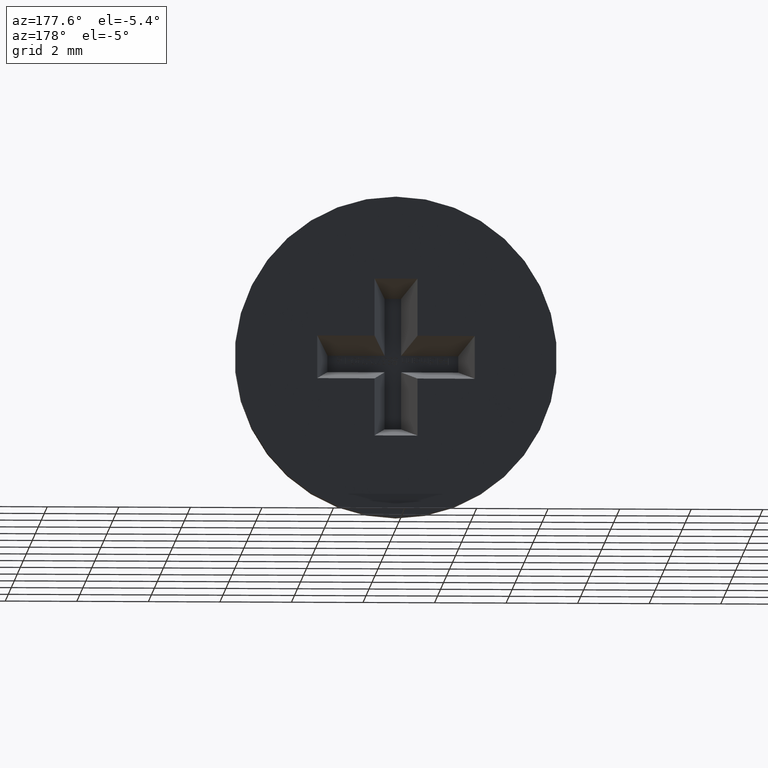
[diagram: clean part render]
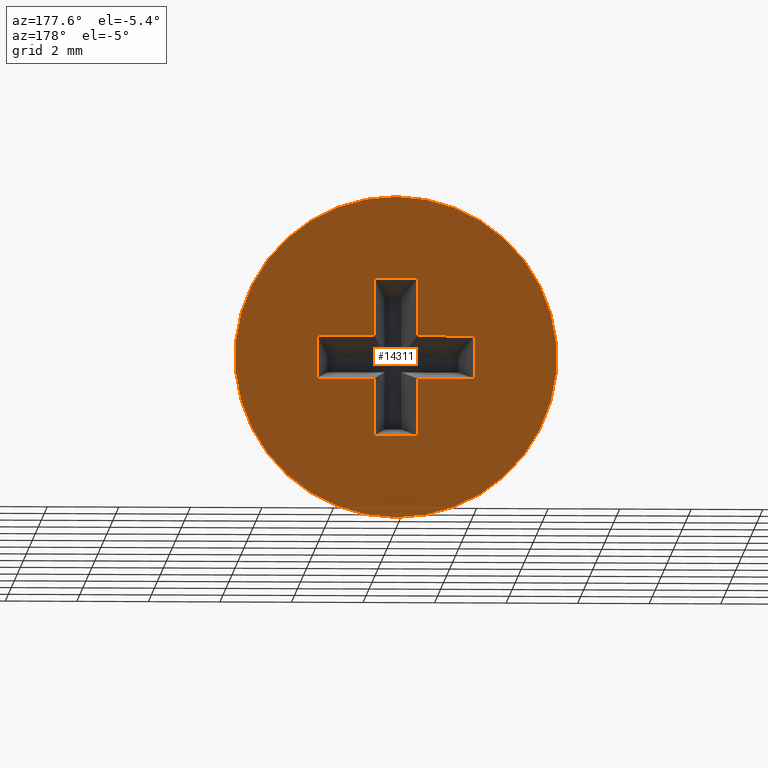
[diagram: same view with one face highlighted and labeled with its STEP entity id]
A machine part, auxiliary view. The second image highlights one B-rep face of the part: STEP entity #14311.
In plain terms, the highlighted planar face has unit normal (0, 1, 0).
Its self-contained STEP definition (entity closure, byte-faithful):
#75 = DIRECTION ( 'NONE',  ( 1.000000000000000000, 0.000000000000000000, 0.000000000000000000 ) ) ;
#266 = DIRECTION ( 'NONE',  ( 1.355252715606880296E-16, 0.000000000000000000, 1.000000000000000000 ) ) ;
#309 = LINE ( 'NONE', #10398, #4797 ) ;
#424 = CARTESIAN_POINT ( 'NONE',  ( -0.5999999999999999778, 16.00000000000000000, -2.200000000000000178 ) ) ;
#459 = DIRECTION ( 'NONE',  ( -1.000000000000000000, -0.000000000000000000, -0.000000000000000000 ) ) ;
#525 = CARTESIAN_POINT ( 'NONE',  ( 2.200000000000000622, 16.00000000000000000, 0.5999999999999999778 ) ) ;
#655 = ORIENTED_EDGE ( 'NONE', *, *, #14235, .F. ) ;
#952 = ORIENTED_EDGE ( 'NONE', *, *, #11883, .F. ) ;
#1184 = CARTESIAN_POINT ( 'NONE',  ( -0.5999999999999994227, 16.00000000000000000, 2.200000000000000178 ) ) ;
#1250 = DIRECTION ( 'NONE',  ( -0.000000000000000000, -1.000000000000000000, -0.000000000000000000 ) ) ;
#1554 = DIRECTION ( 'NONE',  ( -1.000000000000000000, -0.000000000000000000, -0.000000000000000000 ) ) ;
#1602 = VERTEX_POINT ( 'NONE', #13198 ) ;
#1846 = ORIENTED_EDGE ( 'NONE', *, *, #5003, .F. ) ;
#2134 = DIRECTION ( 'NONE',  ( 0.000000000000000000, 1.000000000000000000, 0.000000000000000000 ) ) ;
#2330 = LINE ( 'NONE', #11522, #10739 ) ;
#2427 = VERTEX_POINT ( 'NONE', #14175 ) ;
#2496 = LINE ( 'NONE', #14120, #5201 ) ;
#2817 = CIRCLE ( 'NONE', #13871, 4.500000000000000000 ) ;
#2852 = CARTESIAN_POINT ( 'NONE',  ( 2.200000000000000622, 16.00000000000000000, -0.5999999999999999778 ) ) ;
#3088 = VERTEX_POINT ( 'NONE', #4846 ) ;
#3389 = DIRECTION ( 'NONE',  ( -1.000000000000000000, -0.000000000000000000, -0.000000000000000000 ) ) ;
#3437 = ORIENTED_EDGE ( 'NONE', *, *, #8838, .F. ) ;
#3495 = DIRECTION ( 'NONE',  ( 1.000000000000000000, 0.000000000000000000, 0.000000000000000000 ) ) ;
#3826 = VERTEX_POINT ( 'NONE', #7166 ) ;
#3880 = FACE_OUTER_BOUND ( 'NONE', #5530, .T. ) ;
#3993 = VERTEX_POINT ( 'NONE', #6814 ) ;
#4171 = DIRECTION ( 'NONE',  ( 0.000000000000000000, 0.000000000000000000, -1.000000000000000000 ) ) ;
#4225 = DIRECTION ( 'NONE',  ( -0.000000000000000000, -0.000000000000000000, -1.000000000000000000 ) ) ;
#4256 = VECTOR ( 'NONE', #266, 1000.000000000000000 ) ;
#4265 = CARTESIAN_POINT ( 'NONE',  ( -0.5999999999999996447, 16.00000000000000000, -0.5999999999999999778 ) ) ;
#4660 = ORIENTED_EDGE ( 'NONE', *, *, #12906, .F. ) ;
#4725 = LINE ( 'NONE', #9190, #6517 ) ;
#4797 = VECTOR ( 'NONE', #10502, 1000.000000000000000 ) ;
#4846 = CARTESIAN_POINT ( 'NONE',  ( 0.6000000000000003109, 16.00000000000000000, -0.5999999999999999778 ) ) ;
#4892 = EDGE_LOOP ( 'NONE', ( #3437, #952, #655, #14462, #12510, #11719, #12413, #4660, #5053, #9395, #12063, #5877 ) ) ;
#5003 = EDGE_CURVE ( 'NONE', #9873, #9584, #6876, .T. ) ;
#5053 = ORIENTED_EDGE ( 'NONE', *, *, #10066, .F. ) ;
#5143 = CARTESIAN_POINT ( 'NONE',  ( -0.5999999999999996447, 16.00000000000000000, 0.5999999999999999778 ) ) ;
#5201 = VECTOR ( 'NONE', #8294, 1000.000000000000000 ) ;
#5475 = EDGE_CURVE ( 'NONE', #12802, #2427, #14186, .T. ) ;
#5521 = LINE ( 'NONE', #9354, #4256 ) ;
#5530 = EDGE_LOOP ( 'NONE', ( #14013, #1846 ) ) ;
#5656 = CARTESIAN_POINT ( 'NONE',  ( 0.6000000000000003109, 16.00000000000000000, -0.5999999999999999778 ) ) ;
#5744 = CARTESIAN_POINT ( 'NONE',  ( 0.000000000000000000, 16.00000000000000000, -4.500000000000000000 ) ) ;
#5823 = DIRECTION ( 'NONE',  ( 0.000000000000000000, 0.000000000000000000, -1.000000000000000000 ) ) ;
#5837 = EDGE_CURVE ( 'NONE', #5999, #1602, #10251, .T. ) ;
#5877 = ORIENTED_EDGE ( 'NONE', *, *, #12926, .F. ) ;
#5999 = VERTEX_POINT ( 'NONE', #4265 ) ;
#6155 = EDGE_CURVE ( 'NONE', #2427, #12151, #4725, .T. ) ;
#6382 = CARTESIAN_POINT ( 'NONE',  ( -0.5999999999999999778, 16.00000000000000000, -2.200000000000000178 ) ) ;
#6517 = VECTOR ( 'NONE', #3495, 1000.000000000000000 ) ;
#6814 = CARTESIAN_POINT ( 'NONE',  ( 0.5999999999999999778, 16.00000000000000000, -2.200000000000000178 ) ) ;
#6876 = CIRCLE ( 'NONE', #13415, 4.500000000000000000 ) ;
#6971 = DIRECTION ( 'NONE',  ( 0.000000000000000000, 0.000000000000000000, 1.000000000000000000 ) ) ;
#7125 = CARTESIAN_POINT ( 'NONE',  ( 2.200000000000000622, 16.00000000000000000, -0.5999999999999999778 ) ) ;
#7166 = CARTESIAN_POINT ( 'NONE',  ( -2.199999999999999734, 16.00000000000000000, 0.5999999999999999778 ) ) ;
#7439 = CARTESIAN_POINT ( 'NONE',  ( 0.6000000000000005329, 16.00000000000000000, 2.200000000000000178 ) ) ;
#7676 = VECTOR ( 'NONE', #4225, 1000.000000000000000 ) ;
#8127 = VECTOR ( 'NONE', #8678, 1000.000000000000000 ) ;
#8294 = DIRECTION ( 'NONE',  ( 1.000000000000000000, 0.000000000000000000, 0.000000000000000000 ) ) ;
#8577 = CARTESIAN_POINT ( 'NONE',  ( 0.6000000000000005329, 16.00000000000000000, 0.5999999999999999778 ) ) ;
#8678 = DIRECTION ( 'NONE',  ( -0.000000000000000000, -0.000000000000000000, -1.000000000000000000 ) ) ;
#8746 = EDGE_CURVE ( 'NONE', #1602, #3826, #2330, .T. ) ;
#8838 = EDGE_CURVE ( 'NONE', #3993, #12149, #12164, .T. ) ;
#8849 = VERTEX_POINT ( 'NONE', #7125 ) ;
#8926 = LINE ( 'NONE', #14787, #11945 ) ;
#8948 = DIRECTION ( 'NONE',  ( 0.000000000000000000, -0.000000000000000000, 1.000000000000000000 ) ) ;
#8998 = PLANE ( 'NONE',  #10444 ) ;
#9190 = CARTESIAN_POINT ( 'NONE',  ( 0.6000000000000005329, 16.00000000000000000, 0.5999999999999999778 ) ) ;
#9354 = CARTESIAN_POINT ( 'NONE',  ( -0.5999999999999996447, 16.00000000000000000, 0.5999999999999999778 ) ) ;
#9395 = ORIENTED_EDGE ( 'NONE', *, *, #8746, .F. ) ;
#9584 = VERTEX_POINT ( 'NONE', #5744 ) ;
#9836 = VECTOR ( 'NONE', #1554, 1000.000000000000000 ) ;
#9873 = VERTEX_POINT ( 'NONE', #12121 ) ;
#10066 = EDGE_CURVE ( 'NONE', #3826, #13161, #12146, .T. ) ;
#10251 = LINE ( 'NONE', #14126, #12223 ) ;
#10398 = CARTESIAN_POINT ( 'NONE',  ( -0.5999999999999999778, 16.00000000000000000, -2.200000000000000178 ) ) ;
#10402 = CARTESIAN_POINT ( 'NONE',  ( -2.199999999999999734, 16.00000000000000000, 0.5999999999999999778 ) ) ;
#10444 = AXIS2_PLACEMENT_3D ( 'NONE', #14696, #2134, #8948 ) ;
#10450 = EDGE_CURVE ( 'NONE', #10653, #12802, #2496, .T. ) ;
#10502 = DIRECTION ( 'NONE',  ( 2.032879073410320321E-16, 0.000000000000000000, 1.000000000000000000 ) ) ;
#10653 = VERTEX_POINT ( 'NONE', #1184 ) ;
#10739 = VECTOR ( 'NONE', #6971, 1000.000000000000000 ) ;
#11244 = LINE ( 'NONE', #2852, #7676 ) ;
#11339 = EDGE_CURVE ( 'NONE', #12151, #8849, #11244, .T. ) ;
#11427 = DIRECTION ( 'NONE',  ( -2.032879073410320321E-16, -0.000000000000000000, -1.000000000000000000 ) ) ;
#11522 = CARTESIAN_POINT ( 'NONE',  ( -2.199999999999999734, 16.00000000000000000, -0.5999999999999999778 ) ) ;
#11719 = ORIENTED_EDGE ( 'NONE', *, *, #5475, .F. ) ;
#11883 = EDGE_CURVE ( 'NONE', #3088, #3993, #8926, .T. ) ;
#11945 = VECTOR ( 'NONE', #11427, 1000.000000000000000 ) ;
#12063 = ORIENTED_EDGE ( 'NONE', *, *, #5837, .F. ) ;
#12121 = CARTESIAN_POINT ( 'NONE',  ( 5.510910596163088569E-16, 16.00000000000000000, 4.500000000000000000 ) ) ;
#12143 = CARTESIAN_POINT ( 'NONE',  ( 0.000000000000000000, 16.00000000000000000, 0.000000000000000000 ) ) ;
#12146 = LINE ( 'NONE', #10402, #14630 ) ;
#12149 = VERTEX_POINT ( 'NONE', #6382 ) ;
#12151 = VERTEX_POINT ( 'NONE', #525 ) ;
#12164 = LINE ( 'NONE', #424, #9836 ) ;
#12223 = VECTOR ( 'NONE', #459, 1000.000000000000000 ) ;
#12361 = EDGE_CURVE ( 'NONE', #9584, #9873, #2817, .T. ) ;
#12413 = ORIENTED_EDGE ( 'NONE', *, *, #10450, .F. ) ;
#12510 = ORIENTED_EDGE ( 'NONE', *, *, #6155, .F. ) ;
#12622 = VECTOR ( 'NONE', #3389, 1000.000000000000000 ) ;
#12651 = CARTESIAN_POINT ( 'NONE',  ( 0.000000000000000000, 16.00000000000000000, 0.000000000000000000 ) ) ;
#12802 = VERTEX_POINT ( 'NONE', #7439 ) ;
#12906 = EDGE_CURVE ( 'NONE', #13161, #10653, #5521, .T. ) ;
#12926 = EDGE_CURVE ( 'NONE', #12149, #5999, #309, .T. ) ;
#13150 = LINE ( 'NONE', #5656, #12622 ) ;
#13161 = VERTEX_POINT ( 'NONE', #5143 ) ;
#13198 = CARTESIAN_POINT ( 'NONE',  ( -2.199999999999999734, 16.00000000000000000, -0.5999999999999999778 ) ) ;
#13338 = FACE_BOUND ( 'NONE', #4892, .T. ) ;
#13415 = AXIS2_PLACEMENT_3D ( 'NONE', #12143, #14526, #4171 ) ;
#13871 = AXIS2_PLACEMENT_3D ( 'NONE', #12651, #1250, #5823 ) ;
#14013 = ORIENTED_EDGE ( 'NONE', *, *, #12361, .F. ) ;
#14120 = CARTESIAN_POINT ( 'NONE',  ( -0.5999999999999994227, 16.00000000000000000, 2.200000000000000178 ) ) ;
#14126 = CARTESIAN_POINT ( 'NONE',  ( -2.199999999999999734, 16.00000000000000000, -0.5999999999999999778 ) ) ;
#14175 = CARTESIAN_POINT ( 'NONE',  ( 0.6000000000000005329, 16.00000000000000000, 0.5999999999999999778 ) ) ;
#14186 = LINE ( 'NONE', #8577, #8127 ) ;
#14235 = EDGE_CURVE ( 'NONE', #8849, #3088, #13150, .T. ) ;
#14311 = ADVANCED_FACE ( 'NONE', ( #13338, #3880 ), #8998, .T. ) ;
#14462 = ORIENTED_EDGE ( 'NONE', *, *, #11339, .F. ) ;
#14526 = DIRECTION ( 'NONE',  ( -0.000000000000000000, -1.000000000000000000, -0.000000000000000000 ) ) ;
#14630 = VECTOR ( 'NONE', #75, 1000.000000000000000 ) ;
#14696 = CARTESIAN_POINT ( 'NONE',  ( 0.000000000000000000, 16.00000000000000000, 0.000000000000000000 ) ) ;
#14787 = CARTESIAN_POINT ( 'NONE',  ( 0.5999999999999999778, 16.00000000000000000, -2.200000000000000178 ) ) ;